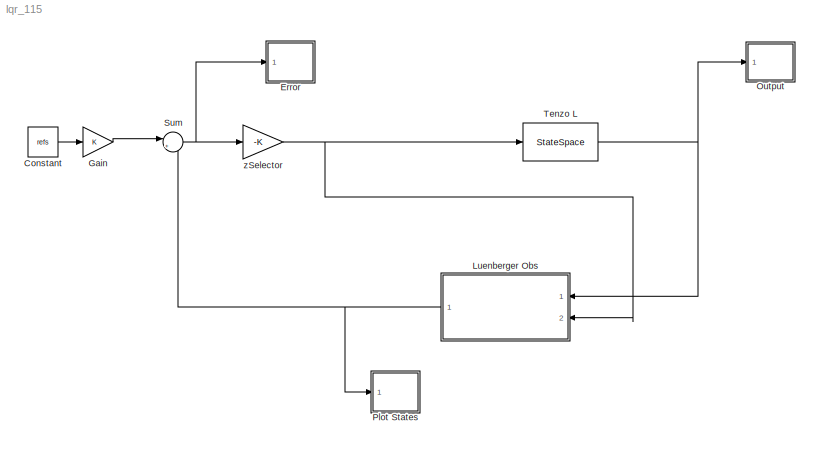
MODEL lqr_115
KIND model
BLOCK [Constant] Constant
  SID = 32
  Value = refs
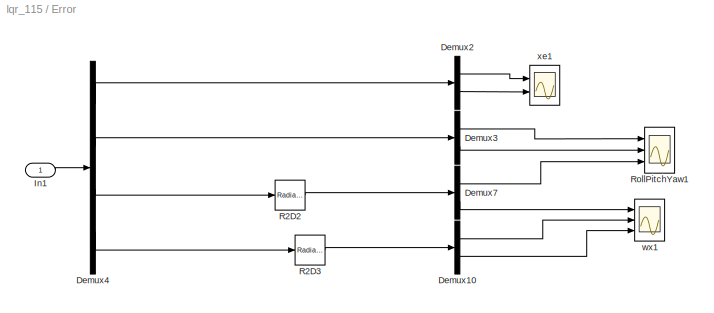
BLOCK [SubSystem] Error
  FunctionWithSeparateData = off
  MaskHideContents = off
  MinAlgLoopOccurrences = off
  Opaque = off
  Ports = [1]
  PropExecContextOutsideSubsystem = off
  RTWSystemCode = Auto
  RequestExecContextInheritance = off
  SID = 34
BLOCK [Demux] Error/Demux10
  DisplayOption = bar
  Outputs = 2
  Ports = [1, 2]
  SID = 36
BLOCK [Demux] Error/Demux2
  DisplayOption = bar
  Outputs = 2
  Ports = [1, 2]
  SID = 37
BLOCK [Demux] Error/Demux3
  DisplayOption = bar
  Outputs = 2
  Ports = [1, 2]
  SID = 38
BLOCK [Demux] Error/Demux4
  DisplayOption = bar
  Ports = [1, 4]
  SID = 39
BLOCK [Demux] Error/Demux7
  DisplayOption = bar
  Outputs = 2
  Ports = [1, 2]
  SID = 40
BLOCK [Inport] Error/In1
  IconDisplay = Port number
  SID = 35
BLOCK [Reference] Error/R2D2  REF=simulink_extras/Transformations/Radians\nto Degrees
  Ports = [1, 1]
  SID = 41
  SourceBlock = simulink_extras/Transformations/Radians\nto Degrees
  SourceType = RadiansToDegrees
BLOCK [Reference] Error/R2D3  REF=simulink_extras/Transformations/Radians\nto Degrees
  Ports = [1, 1]
  SID = 42
  SourceBlock = simulink_extras/Transformations/Radians\nto Degrees
  SourceType = RadiansToDegrees
BLOCK [Scope] Error/RollPitchYaw1
  DataFormat = StructureWithTime
  Floating = off
  NumInputPorts = 3
  Ports = [3]
  SID = 43
  SampleTime = 0
  SaveName = ScopeData21
  ShowLegends = off
  YMax = 5~5~5
  YMin = -5~-5~-5
  ZoomMode = yonly
BLOCK [Scope] Error/wx1
  DataFormat = StructureWithTime
  Floating = off
  NumInputPorts = 3
  Ports = [3]
  SID = 44
  SampleTime = 0
  SaveName = ScopeData24
  ShowLegends = off
  TimeRange = 15
  YMax = 5~5~5
  YMin = -5~-5~-5
BLOCK [Scope] Error/xe1
  DataFormat = StructureWithTime
  Floating = off
  LimitDataPoints = off
  NumInputPorts = 2
  Ports = [2]
  SID = 45
  SampleTime = 0
  SaveName = ScopeData25
  ShowLegends = off
  TimeRange = 3
  YMax = 3e-05~3e-05
  YMin = 1.6e-05~1.6e-05
BLOCK [Gain] Gain
  OutDataTypeStr = Inherit: Inherit via internal rule
  ParamDataTypeStr = Inherit: Inherit via internal rule
  SID = 33
  SaturateOnIntegerOverflow = off
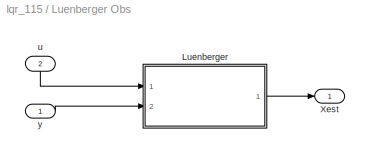
BLOCK [SubSystem] Luenberger Obs
  FunctionWithSeparateData = off
  MaskHideContents = off
  MinAlgLoopOccurrences = off
  Opaque = off
  Ports = [2, 1]
  PropExecContextOutsideSubsystem = off
  RTWSystemCode = Auto
  RequestExecContextInheritance = off
  SID = 3
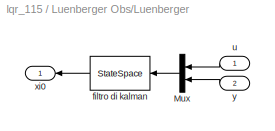
BLOCK [SubSystem] Luenberger Obs/Luenberger
  FunctionWithSeparateData = off
  MaskHideContents = off
  MinAlgLoopOccurrences = off
  Opaque = off
  Ports = [2, 1]
  PropExecContextOutsideSubsystem = off
  RTWSystemCode = Auto
  RequestExecContextInheritance = off
  SID = 6
BLOCK [Mux] Luenberger Obs/Luenberger/Mux
  DisplayOption = bar
  Inputs = [4 4]
  Ports = [2, 1]
  SID = 9
BLOCK [StateSpace] Luenberger Obs/Luenberger/filtro di kalman
  A = Aoss
  B = Boss
  C = Coss
  D = Doss
  SID = 10
  X0 = [0 0 0 0 0 0 0 0]
BLOCK [Inport] Luenberger Obs/Luenberger/u
  IconDisplay = Port number
  SID = 7
BLOCK [Outport] Luenberger Obs/Luenberger/xi0
  IconDisplay = Port number
  SID = 11
BLOCK [Inport] Luenberger Obs/Luenberger/y
  IconDisplay = Port number
  Port = 2
  SID = 8
BLOCK [Outport] Luenberger Obs/Xest
  IconDisplay = Port number
  SID = 12
BLOCK [Inport] Luenberger Obs/u
  IconDisplay = Port number
  Port = 2
  SID = 5
BLOCK [Inport] Luenberger Obs/y
  IconDisplay = Port number
  SID = 4
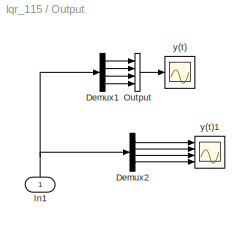
BLOCK [SubSystem] Output
  FunctionWithSeparateData = off
  MaskHideContents = off
  MinAlgLoopOccurrences = off
  Opaque = off
  Ports = [1]
  PropExecContextOutsideSubsystem = off
  RTWSystemCode = Auto
  RequestExecContextInheritance = off
  SID = 46
BLOCK [Demux] Output/Demux1
  DisplayOption = bar
  Ports = [1, 4]
  SID = 1
BLOCK [Demux] Output/Demux2
  DisplayOption = bar
  Ports = [1, 4]
  SID = 48
BLOCK [Inport] Output/In1
  IconDisplay = Port number
  SID = 47
BLOCK [Concatenate] Output/Output
  NumInputs = 4
  Ports = [4, 1]
  SID = 13
BLOCK [Scope] Output/y(t)
  DataFormat = StructureWithTime
  Floating = off
  LimitDataPoints = off
  NumInputPorts = 1
  Ports = [1]
  SID = 29
  SampleTime = 0
  SaveName = ScopeData20
  ShowLegends = off
  YMax = 7000
  YMin = 2500
BLOCK [Scope] Output/y(t)1
  DataFormat = StructureWithTime
  Floating = off
  LimitDataPoints = off
  NumInputPorts = 4
  Ports = [4]
  SID = 50
  SampleTime = 0
  ShowLegends = off
  YMax = 7000~5~5~5
  YMin = 2500~-5~-5~-5
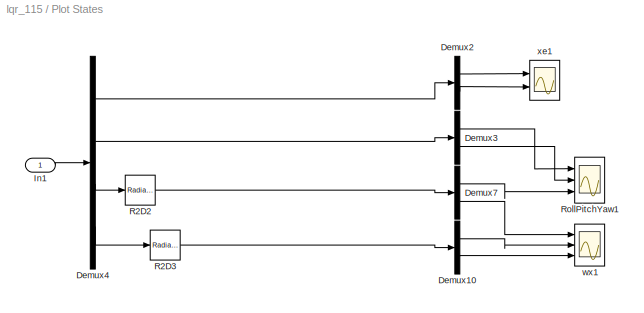
BLOCK [SubSystem] Plot States
  FunctionWithSeparateData = off
  MaskHideContents = off
  MinAlgLoopOccurrences = off
  Opaque = off
  Ports = [1]
  PropExecContextOutsideSubsystem = off
  RTWSystemCode = Auto
  RequestExecContextInheritance = off
  SID = 14
BLOCK [Demux] Plot States/Demux10
  DisplayOption = bar
  Outputs = 2
  Ports = [1, 2]
  SID = 16
BLOCK [Demux] Plot States/Demux2
  DisplayOption = bar
  Outputs = 2
  Ports = [1, 2]
  SID = 17
BLOCK [Demux] Plot States/Demux3
  DisplayOption = bar
  Outputs = 2
  Ports = [1, 2]
  SID = 18
BLOCK [Demux] Plot States/Demux4
  DisplayOption = bar
  Ports = [1, 4]
  SID = 19
BLOCK [Demux] Plot States/Demux7
  DisplayOption = bar
  Outputs = 2
  Ports = [1, 2]
  SID = 20
BLOCK [Inport] Plot States/In1
  IconDisplay = Port number
  SID = 15
BLOCK [Reference] Plot States/R2D2  REF=simulink_extras/Transformations/Radians\nto Degrees
  Ports = [1, 1]
  SID = 21
  SourceBlock = simulink_extras/Transformations/Radians\nto Degrees
  SourceType = RadiansToDegrees
BLOCK [Reference] Plot States/R2D3  REF=simulink_extras/Transformations/Radians\nto Degrees
  Ports = [1, 1]
  SID = 22
  SourceBlock = simulink_extras/Transformations/Radians\nto Degrees
  SourceType = RadiansToDegrees
BLOCK [Scope] Plot States/RollPitchYaw1
  DataFormat = StructureWithTime
  Floating = off
  NumInputPorts = 3
  Ports = [3]
  SID = 23
  SampleTime = 0
  SaveName = ScopeData21
  ShowLegends = off
  YMax = 5~5~5
  YMin = -5~-5~-5
  ZoomMode = yonly
BLOCK [Scope] Plot States/wx1
  DataFormat = StructureWithTime
  Floating = off
  NumInputPorts = 3
  Ports = [3]
  SID = 24
  SampleTime = 0
  SaveName = ScopeData24
  ShowLegends = off
  TimeRange = 15
  YMax = 5~5~5
  YMin = -5~-5~-5
BLOCK [Scope] Plot States/xe1
  DataFormat = StructureWithTime
  Floating = off
  LimitDataPoints = off
  NumInputPorts = 2
  Ports = [2]
  SID = 25
  SampleTime = 0
  SaveName = ScopeData25
  ShowLegends = off
  TimeRange = 3
  YMax = 3e-05~3e-05
  YMin = 1.6e-05~1.6e-05
BLOCK [Sum] Sum
  IconShape = round
  InputSameDT = off
  Inputs = |++
  OutDataTypeStr = Inherit: Inherit via internal rule
  Ports = [2, 1]
  SID = 31
  SaturateOnIntegerOverflow = off
BLOCK [StateSpace] Tenzo L
  A = AMin
  B = BMin
  C = ClocalMin
  D = D
  SID = 26
  X0 = [20 0 45 0 180 0 0 0 ]
BLOCK [Gain] zSelector
  Gain = -K
  Multiplication = Matrix(K*u)
  OutDataTypeStr = Inherit: Inherit via internal rule
  ParamDataTypeStr = Inherit: Inherit via internal rule
  SID = 30
  SaturateOnIntegerOverflow = off
LINE Constant:1 -> Gain:1
LINE Error/Demux10:1 -> Error/wx1:2
LINE Error/Demux10:2 -> Error/wx1:3
LINE Error/Demux2:1 -> Error/xe1:1
LINE Error/Demux2:2 -> Error/xe1:2
LINE Error/Demux3:1 -> Error/RollPitchYaw1:1
LINE Error/Demux3:2 -> Error/RollPitchYaw1:2
LINE Error/Demux4:1 -> Error/Demux2:1
LINE Error/Demux4:2 -> Error/Demux3:1
LINE Error/Demux4:3 -> Error/R2D2:1
LINE Error/Demux4:4 -> Error/R2D3:1
LINE Error/Demux7:1 -> Error/RollPitchYaw1:3
LINE Error/Demux7:2 -> Error/wx1:1
LINE Error/In1:1 -> Error/Demux4:1
LINE Error/R2D2:1 -> Error/Demux7:1
LINE Error/R2D3:1 -> Error/Demux10:1
LINE Gain:1 -> Sum:1
LINE Luenberger Obs/Luenberger/Mux:1 -> Luenberger Obs/Luenberger/filtro di kalman:1
LINE Luenberger Obs/Luenberger/filtro di kalman:1 -> Luenberger Obs/Luenberger/xi0:1
LINE Luenberger Obs/Luenberger/u:1 -> Luenberger Obs/Luenberger/Mux:1
LINE Luenberger Obs/Luenberger/y:1 -> Luenberger Obs/Luenberger/Mux:2
LINE Luenberger Obs/Luenberger:1 -> Luenberger Obs/Xest:1
LINE Luenberger Obs/u:1 -> Luenberger Obs/Luenberger:1
LINE Luenberger Obs/y:1 -> Luenberger Obs/Luenberger:2
NET Luenberger Obs:1 -> Plot States:1, Sum:2
LINE Output/Demux1:1 -> Output/Output:1
LINE Output/Demux1:2 -> Output/Output:2
LINE Output/Demux1:3 -> Output/Output:3
LINE Output/Demux1:4 -> Output/Output:4
LINE Output/Demux2:1 -> Output/y(t)1:1
LINE Output/Demux2:2 -> Output/y(t)1:2
LINE Output/Demux2:3 -> Output/y(t)1:3
LINE Output/Demux2:4 -> Output/y(t)1:4
NET Output/In1:1 -> Output/Demux1:1, Output/Demux2:1
LINE Output/Output:1 -> Output/y(t):1
LINE Plot States/Demux10:1 -> Plot States/wx1:2
LINE Plot States/Demux10:2 -> Plot States/wx1:3
LINE Plot States/Demux2:1 -> Plot States/xe1:1
LINE Plot States/Demux2:2 -> Plot States/xe1:2
LINE Plot States/Demux3:1 -> Plot States/RollPitchYaw1:1
LINE Plot States/Demux3:2 -> Plot States/RollPitchYaw1:2
LINE Plot States/Demux4:1 -> Plot States/Demux2:1
LINE Plot States/Demux4:2 -> Plot States/Demux3:1
LINE Plot States/Demux4:3 -> Plot States/R2D2:1
LINE Plot States/Demux4:4 -> Plot States/R2D3:1
LINE Plot States/Demux7:1 -> Plot States/RollPitchYaw1:3
LINE Plot States/Demux7:2 -> Plot States/wx1:1
LINE Plot States/In1:1 -> Plot States/Demux4:1
LINE Plot States/R2D2:1 -> Plot States/Demux7:1
LINE Plot States/R2D3:1 -> Plot States/Demux10:1
NET Sum:1 -> Error:1, zSelector:1
NET Tenzo L:1 -> Luenberger Obs:1, Output:1
NET zSelector:1 -> Luenberger Obs:2, Tenzo L:1
note: NET lines group one-source signal fan-out (src -> all destinations, sorted); 1:1 wires keep LINE
